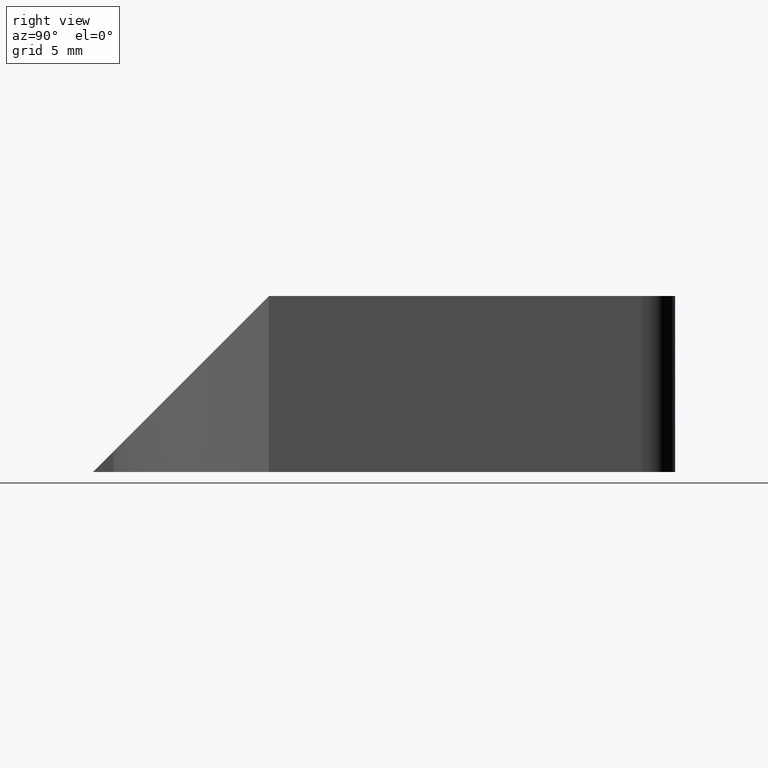
[diagram: clean part render]
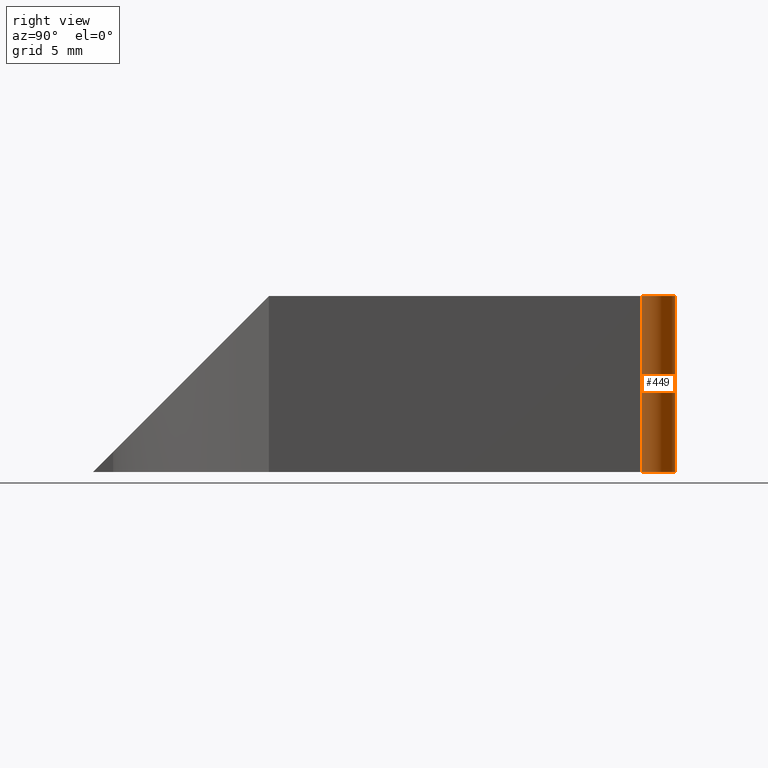
[diagram: same view with one face highlighted and labeled with its STEP entity id]
A machine part, right view. The second image highlights one B-rep face of the part: STEP entity #449.
In plain terms, the highlighted cylindrical surface (edge-blend (fillet) strip) has radius 2.5 mm, axis along (0, -0, 1).
Its self-contained STEP definition (entity closure, byte-faithful):
#391=CARTESIAN_POINT('',(0.0,13.750000000000002,1.776357E-015));
#392=VERTEX_POINT('',#391);
#399=CARTESIAN_POINT('',(0.0,13.750000000000002,12.999999999999774));
#400=VERTEX_POINT('',#399);
#401=CARTESIAN_POINT('',(0.0,13.750000000000002,1.776357E-015));
#402=DIRECTION('',(0.0,0.0,1.0));
#403=VECTOR('',#402,12.999999999999773);
#404=LINE('',#401,#403);
#405=EDGE_CURVE('',#392,#400,#404,.T.);
#417=CARTESIAN_POINT('',(-2.500000000000000,13.750000000000002,1.776357E-015));
#418=DIRECTION('',(1.499760E-032,-1.224647E-016,1.0));
#419=DIRECTION('',(-1.0,-1.224647E-016,0.0));
#420=AXIS2_PLACEMENT_3D('',#417,#418,#419);
#421=CYLINDRICAL_SURFACE('',#420,2.500000000000000);
#422=CARTESIAN_POINT('',(-2.500000000000000,16.250000000000000,1.776357E-015));
#423=VERTEX_POINT('',#422);
#424=CARTESIAN_POINT('',(-2.500000000000000,13.750000000000002,1.776357E-015));
#425=DIRECTION('',(1.499760E-032,-1.224647E-016,1.0));
#426=DIRECTION('',(-1.0,-1.224647E-016,0.0));
#427=AXIS2_PLACEMENT_3D('',#424,#425,#426);
#428=CIRCLE('',#427,2.500000000000000);
#429=EDGE_CURVE('',#392,#423,#428,.T.);
#430=ORIENTED_EDGE('',*,*,#429,.T.);
#431=CARTESIAN_POINT('',(-2.500000000000000,16.250000000000000,12.999999999999774));
#432=VERTEX_POINT('',#431);
#433=CARTESIAN_POINT('',(-2.500000000000000,16.250000000000000,1.776357E-015));
#434=DIRECTION('',(0.0,0.0,1.0));
#435=VECTOR('',#434,12.999999999999773);
#436=LINE('',#433,#435);
#437=EDGE_CURVE('',#423,#432,#436,.T.);
#438=ORIENTED_EDGE('',*,*,#437,.T.);
#439=CARTESIAN_POINT('',(-2.500000000000000,13.750000000000002,12.999999999999774));
#440=DIRECTION('',(1.499760E-032,-1.224647E-016,1.0));
#441=DIRECTION('',(-1.0,-1.224647E-016,0.0));
#442=AXIS2_PLACEMENT_3D('',#439,#440,#441);
#443=CIRCLE('',#442,2.500000000000000);
#444=EDGE_CURVE('',#400,#432,#443,.T.);
#445=ORIENTED_EDGE('',*,*,#444,.F.);
#446=ORIENTED_EDGE('',*,*,#405,.F.);
#447=EDGE_LOOP('',(#430,#438,#445,#446));
#448=FACE_OUTER_BOUND('',#447,.T.);
#449=ADVANCED_FACE('',(#448),#421,.T.);